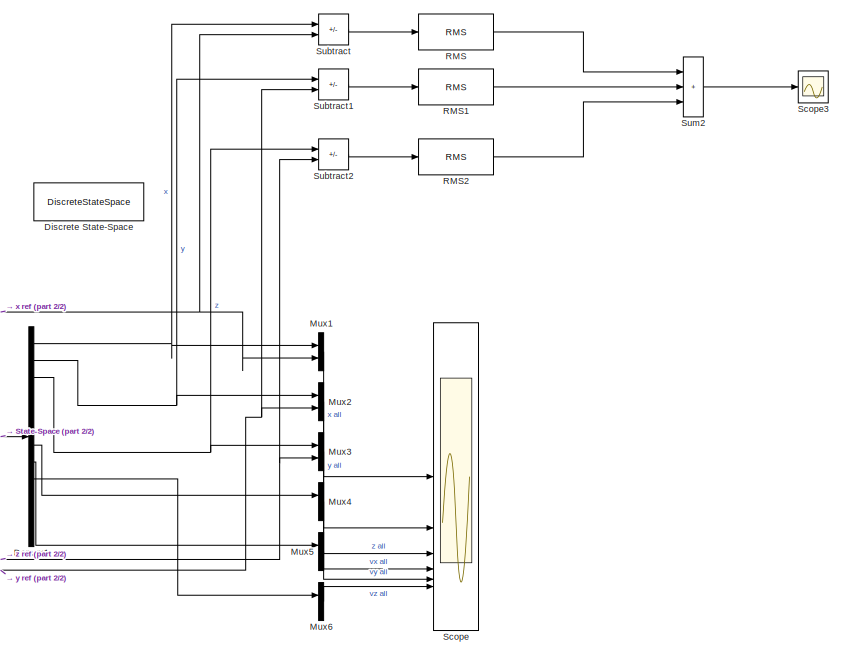
[diagram: root canvas - part 1/2, middle right region]
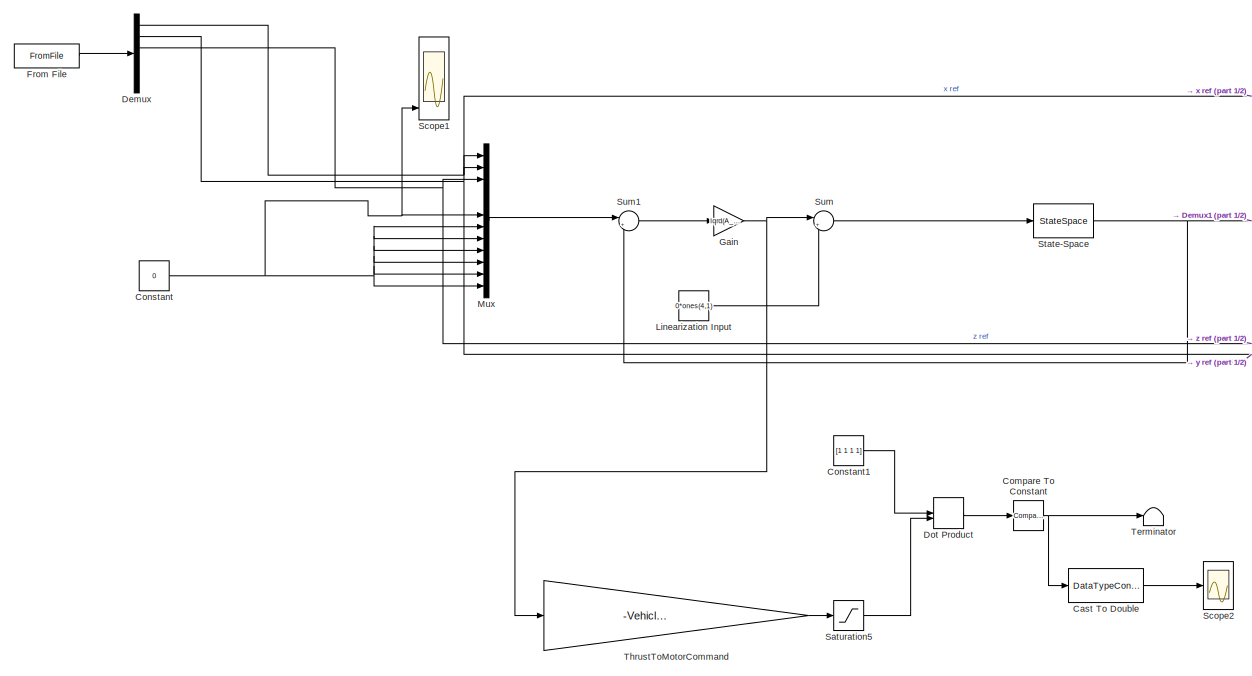
[diagram: root canvas - part 2/2, left side, full height]
MODEL slx_7241c13f9b78
KIND model
CONFIG AbsTol = auto
CONFIG EnableMultiTasking = off
CONFIG FixedStep = auto
CONFIG MaxStep = auto
CONFIG MinStep = auto
CONFIG RelTol = 1e-3
CONFIG SampleTimeConstraint = Unconstrained
CONFIG SolverName = VariableStepAuto
CONFIG StartTime = 0.0
CONFIG StopTime = 65
BLOCK [DataTypeConversion] Cast To Double
  OutDataTypeStr = double
  RndMeth = Floor
  SaturateOnIntegerOverflow = off
BLOCK [Reference] Compare To Constant  REF=simulink/Logic and Bit
Operations/Compare
To Constant
  SourceBlock = simulink/Logic and Bit\nOperations/Compare\nTo Constant
  SourceType = Compare To Constant
BLOCK [Constant] Constant
  SampleTime = Ts
  Value = 0
BLOCK [Constant] Constant1
  OutDataTypeStr = double
  Value = [1 1 1 1]
BLOCK [Demux] Demux
  Outputs = 6
BLOCK [Demux] Demux1
  Outputs = 12
BLOCK [DiscreteStateSpace] Discrete State-Space
  A = A_pos
  B = B_pos
  C = eye(12)
  D = zeros(12,4)
  SampleTime = Ts
BLOCK [DotProduct] Dot Product
  OutDataTypeStr = Inherit: Inherit via internal rule
BLOCK [FromFile] From File
  FileName = cmdData.mat
  SampleTime = Ts
BLOCK [Gain] Gain
  Gain = lqrd(A_pos, B_pos, C_pos'*diag([Qx_pos, Qy_pos, Qz_pos, Qpsi_pos])*C_pos, eye(4),Ts)
  Multiplication = Matrix(K*u)
BLOCK [Constant] Linearization Input
  OutDataTypeStr = double
  SampleTime = Ts
  Value = 0*ones(4,1)
BLOCK [Mux] Mux
  DisplayOption = bar
  Inputs = 12
BLOCK [Mux] Mux1
  DisplayOption = bar
  Inputs = 2
BLOCK [Mux] Mux2
  DisplayOption = bar
  Inputs = 2
BLOCK [Mux] Mux3
  DisplayOption = bar
  Inputs = 2
BLOCK [Mux] Mux4
  DisplayOption = bar
  Inputs = 2
BLOCK [Mux] Mux5
  DisplayOption = bar
  Inputs = 2
BLOCK [Mux] Mux6
  DisplayOption = bar
  Inputs = 2
BLOCK [Reference] RMS  REF=dspstat3/RMS
  SourceBlock = dspstat3/RMS
  SourceType = RMS
  UserDataPersistent = on
BLOCK [Reference] RMS1  REF=dspstat3/RMS
  SourceBlock = dspstat3/RMS
  SourceType = RMS
  UserDataPersistent = on
BLOCK [Reference] RMS2  REF=dspstat3/RMS
  SourceBlock = dspstat3/RMS
  SourceType = RMS
  UserDataPersistent = on
BLOCK [Saturate] Saturation5
  LowerLimit = Vehicle.Motor.minLimit
  UpperLimit = Vehicle.Motor.maxLimit
BLOCK [Scope] Scope
  Floating = off
  NumInputPorts = 6
  ScopeSpecificationString = Simulink.scopes.TimeScopeBlockCfg('CurrentConfiguration', extmgr.ConfigurationSet(extmgr.Configuration('Core','General UI',true),extmgr.Configuration('Core','Source UI',true),extmgr.Configuration('Sources','WiredSimulink',true,'DataLoggingVariableName','ScopeData2'),extmgr.Configuration('Visuals','Time Domain',true,'SerializedDisplays',{struct('MinYLimReal','-0.37329','MaxYLimReal','2.26682','YLab...<+5488ch>
BLOCK [Scope] Scope1
  Floating = off
  NumInputPorts = 6
  ScopeSpecificationString = Simulink.scopes.TimeScopeBlockCfg('CurrentConfiguration', extmgr.ConfigurationSet(extmgr.Configuration('Core','General UI',true),extmgr.Configuration('Core','Source UI',true),extmgr.Configuration('Sources','WiredSimulink',true),extmgr.Configuration('Visuals','Time Domain',true,'SerializedDisplays',{struct('MinYLimReal','-0.125','MaxYLimReal','1.125','YLabelReal','','MinYLimMag','0.00000','MaxYLimM...<+1506ch>
BLOCK [Scope] Scope2
  Floating = off
  NumInputPorts = 1
  ScopeSpecificationString = Simulink.scopes.TimeScopeBlockCfg('CurrentConfiguration', extmgr.ConfigurationSet(extmgr.Configuration('Core','General UI',true),extmgr.Configuration('Core','Source UI',true),extmgr.Configuration('Sources','WiredSimulink',true,'DataLoggingVariableName','ScopeData1'),extmgr.Configuration('Visuals','Time Domain',true,'SerializedDisplays',{struct('MinYLimReal','-1.00000','MaxYLimReal','1.00000','YLab...<+1517ch>
BLOCK [Scope] Scope3
  Floating = off
  NumInputPorts = 1
  ScopeSpecificationString = Simulink.scopes.TimeScopeBlockCfg('CurrentConfiguration', extmgr.ConfigurationSet(extmgr.Configuration('Core','General UI',true),extmgr.Configuration('Core','Source UI',true),extmgr.Configuration('Sources','WiredSimulink',true,'DataLoggingVariableName','ScopeData3'),extmgr.Configuration('Visuals','Time Domain',true,'SerializedDisplays',{struct('MinYLimReal','-0.12502','MaxYLimReal','1.12515','YLab...<+1507ch>
BLOCK [StateSpace] State-Space
  A = A_pos
  B = B_pos
  C = eye(12)
  D = zeros(12,4)
  InitialCondition = 0
BLOCK [Sum] Subtract
  IconShape = rectangular
  Inputs = +-
BLOCK [Sum] Subtract1
  IconShape = rectangular
  Inputs = +-
BLOCK [Sum] Subtract2
  IconShape = rectangular
  Inputs = +-
BLOCK [Sum] Sum
  Inputs = |++
BLOCK [Sum] Sum1
  Inputs = |+-
BLOCK [Sum] Sum2
  IconShape = rectangular
  Inputs = +++
BLOCK [Terminator] Terminator
BLOCK [Gain] ThrustToMotorCommand
  Gain = -Vehicle.Motor.thrustToMotorCommand
LINE Cast To Double:1 -> Scope2:1
NET Compare To Constant:1 -> Cast To Double:1, Terminator:1
LINE Constant1:1 -> Dot Product:1
NET Constant:1 -> Mux:10, Mux:11, Mux:12, Mux:6, Mux:7, Mux:8, Mux:9, Scope1:6
NET Demux1:1 -> Mux1:1, Subtract:1
NET Demux1:2 -> Mux2:1, Subtract1:1
NET Demux1:3 -> Mux3:1, Subtract2:1
LINE Demux1:7 -> Mux4:1
LINE Demux1:8 -> Mux5:1
LINE Demux1:9 -> Mux6:1
NET Demux:1 -> Mux1:2, Mux:1, Subtract:2
NET Demux:2 -> Mux2:2, Mux:2, Subtract1:2
NET Demux:3 -> Mux3:2, Mux:3, Subtract2:2
LINE Dot Product:1 -> Compare To Constant:1
LINE From File:1 -> Demux:1
NET Gain:1 -> Sum:1, ThrustToMotorCommand:1
LINE Linearization Input:1 -> Sum:2
LINE Mux1:1 -> Scope:1
LINE Mux2:1 -> Scope:2
LINE Mux3:1 -> Scope:3
LINE Mux4:1 -> Scope:4
LINE Mux5:1 -> Scope:5
LINE Mux6:1 -> Scope:6
LINE Mux:1 -> Sum1:1
LINE RMS1:1 -> Sum2:2
LINE RMS2:1 -> Sum2:3
LINE RMS:1 -> Sum2:1
LINE Saturation5:1 -> Dot Product:2
NET State-Space:1 -> Demux1:1, Sum1:2
LINE Subtract1:1 -> RMS1:1
LINE Subtract2:1 -> RMS2:1
LINE Subtract:1 -> RMS:1
LINE Sum1:1 -> Gain:1
LINE Sum2:1 -> Scope3:1
LINE Sum:1 -> State-Space:1
LINE ThrustToMotorCommand:1 -> Saturation5:1
note: NET lines group one-source signal fan-out (src -> all destinations, sorted); 1:1 wires keep LINE
